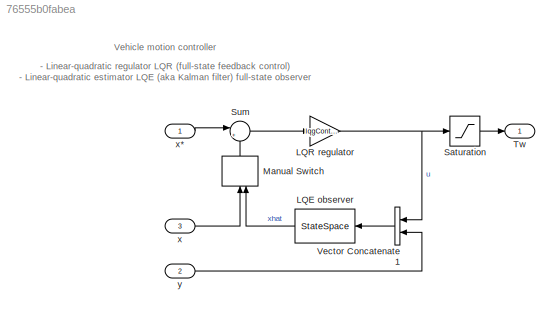
MODEL slx_76555b0fabea
KIND model
CONFIG AbsTol = auto
CONFIG EnableMultiTasking = off
CONFIG FixedStep = auto
CONFIG MaxStep = auto
CONFIG MinStep = auto
CONFIG RelTol = 1e-3
CONFIG SampleTimeConstraint = Unconstrained
CONFIG SolverName = VariableStepAuto
CONFIG StartTime = 0.0
CONFIG StopTime = 10.0
BLOCK [StateSpace] LQE observer
  A = ltiSys.A-lqgController.L*ltiSys.C
  B = [ltiSys.B(:, 1), lqgController.L]
  C = eye(4)
  D = zeros(4, size([ltiSys.B(:, 1), lqgController.L], 2))
  InitialCondition = 0
  Ports = [1, 1]
BLOCK [Gain] LQR regulator
  Gain = lqgController.K
  Multiplication = Matrix(K*u)
BLOCK [ManualSwitch] Manual Switch
  CurrentSetting = 0
  NameLocation = right
BLOCK [Saturate] Saturation
  LinearizeAsGain = off
  LowerLimit = -2*MotorParameters.maxTorque
  UpperLimit = 2*MotorParameters.maxTorque
BLOCK [Sum] Sum
  Inputs = |+-
  Ports = [2, 1]
BLOCK [Outport] Tw
BLOCK [Concatenate] Vector Concatenate1
  Ports = [2, 1]
BLOCK [Inport] x
  Port = 3
  PortDimensions = [4, 1]
BLOCK [Inport] x*
  PortDimensions = [4, 1]
BLOCK [Inport] y
  Port = 2
  PortDimensions = [3, 1]
ANNOTATION (root): Vehicle motion controller
ANNOTATION (root): - Linear-quadratic regulator LQR (full-state feedback control) - Linear-quadratic estimator LQE (aka Kalman filter) full-state observer
LINE LQE observer:1 -> Manual Switch:2
NET LQR regulator:1 -> Saturation:1, Vector Concatenate1:1
LINE Manual Switch:1 -> Sum:2
LINE Saturation:1 -> Tw:1
LINE Sum:1 -> LQR regulator:1
LINE Vector Concatenate1:1 -> LQE observer:1
LINE x*:1 -> Sum:1
LINE x:1 -> Manual Switch:1
LINE y:1 -> Vector Concatenate1:2
note: NET lines group one-source signal fan-out (src -> all destinations, sorted); 1:1 wires keep LINE
